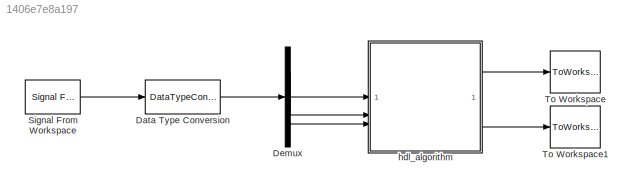
MODEL slx_1406e7e8a197
KIND model
CONFIG AbsTol = auto
CONFIG EnableMultiTasking = off
CONFIG FixedStep = auto
CONFIG MaxStep = auto
CONFIG MinStep = auto
CONFIG RelTol = 1e-3
CONFIG SampleTimeConstraint = Unconstrained
CONFIG SolverName = FixedStepDiscrete
CONFIG StartTime = 0.0
CONFIG StopTime = simTime
BLOCK [DataTypeConversion] Data Type Conversion
  OutDataTypeStr = boolean
  RndMeth = Floor
  SaturateOnIntegerOverflow = off
BLOCK [Demux] Demux
  Outputs = 3
BLOCK [Reference] Signal From Workspace  REF=dspsrcs4/Signal From
Workspace
  SourceBlock = dspsrcs4/Signal From\nWorkspace
  SourceType = Signal From Workspace
BLOCK [ToWorkspace] To Workspace
  MaxDataPoints = inf
  SampleTime = -1
  Save2DSignal = 2-D array (concatenate along first dimension)
  SaveFormat = Timeseries
  VariableName = AandB
BLOCK [ToWorkspace] To Workspace1
  MaxDataPoints = inf
  SampleTime = -1
  Save2DSignal = 2-D array (concatenate along first dimension)
  SaveFormat = Timeseries
  VariableName = BorC
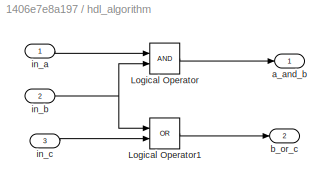
BLOCK [SubSystem] hdl_algorithm
BLOCK [Logic] hdl_algorithm/Logical Operator
  AllPortsSameDT = off
  OutDataTypeStr = boolean
BLOCK [Logic] hdl_algorithm/Logical Operator1
  AllPortsSameDT = off
  Operator = OR
  OutDataTypeStr = boolean
BLOCK [Outport] hdl_algorithm/a_and_b
BLOCK [Outport] hdl_algorithm/b_or_c
  Port = 2
BLOCK [Inport] hdl_algorithm/in_a
BLOCK [Inport] hdl_algorithm/in_b
  Port = 2
BLOCK [Inport] hdl_algorithm/in_c
  Port = 3
LINE Data Type Conversion:1 -> Demux:1
LINE Demux:1 -> hdl_algorithm:1
LINE Demux:2 -> hdl_algorithm:2
LINE Demux:3 -> hdl_algorithm:3
LINE Signal From Workspace:1 -> Data Type Conversion:1
LINE hdl_algorithm/Logical Operator1:1 -> hdl_algorithm/b_or_c:1
LINE hdl_algorithm/Logical Operator:1 -> hdl_algorithm/a_and_b:1
LINE hdl_algorithm/in_a:1 -> hdl_algorithm/Logical Operator:1
NET hdl_algorithm/in_b:1 -> hdl_algorithm/Logical Operator1:1, hdl_algorithm/Logical Operator:2
LINE hdl_algorithm/in_c:1 -> hdl_algorithm/Logical Operator1:2
LINE hdl_algorithm:1 -> To Workspace:1
LINE hdl_algorithm:2 -> To Workspace1:1
note: NET lines group one-source signal fan-out (src -> all destinations, sorted); 1:1 wires keep LINE
